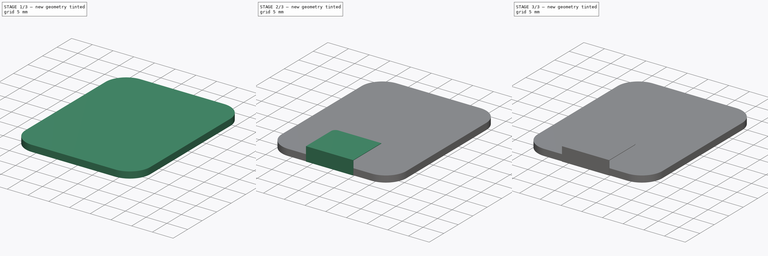
[diagram: build sequence overview — one tinted view per stage of 3, left to right]
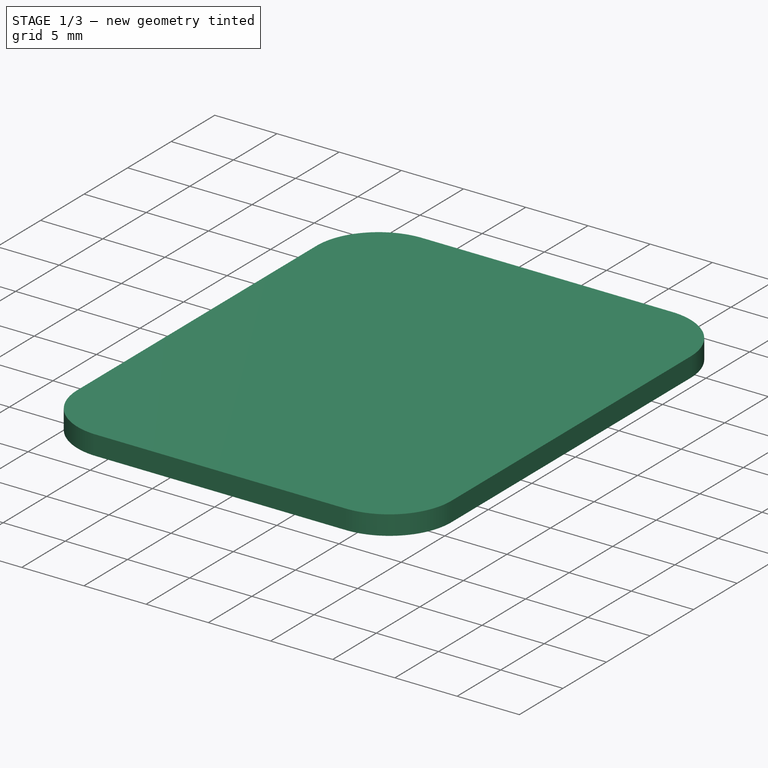
[diagram: stage 1 of 3 — iso view after this stage's code; geometry added in this stage tinted green]
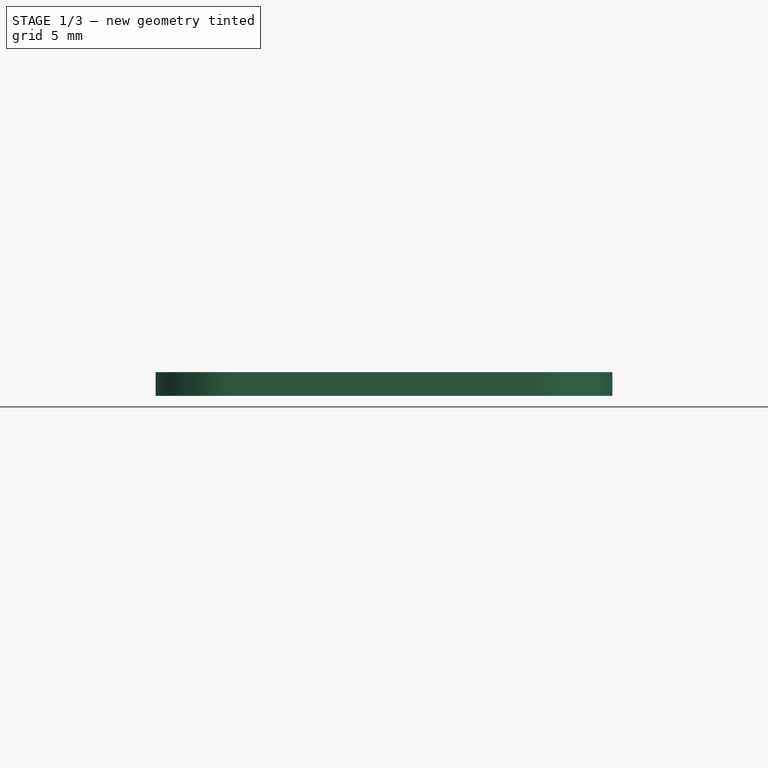
[diagram: stage 1 of 3 — front view after this stage's code; geometry added in this stage tinted green]
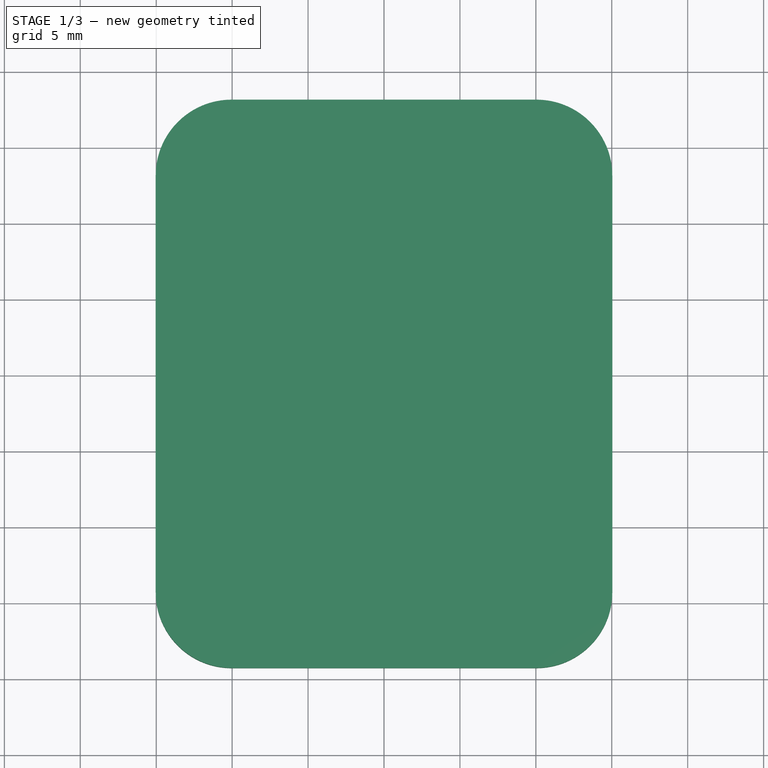
[diagram: stage 1 of 3 — top view after this stage's code; geometry added in this stage tinted green]
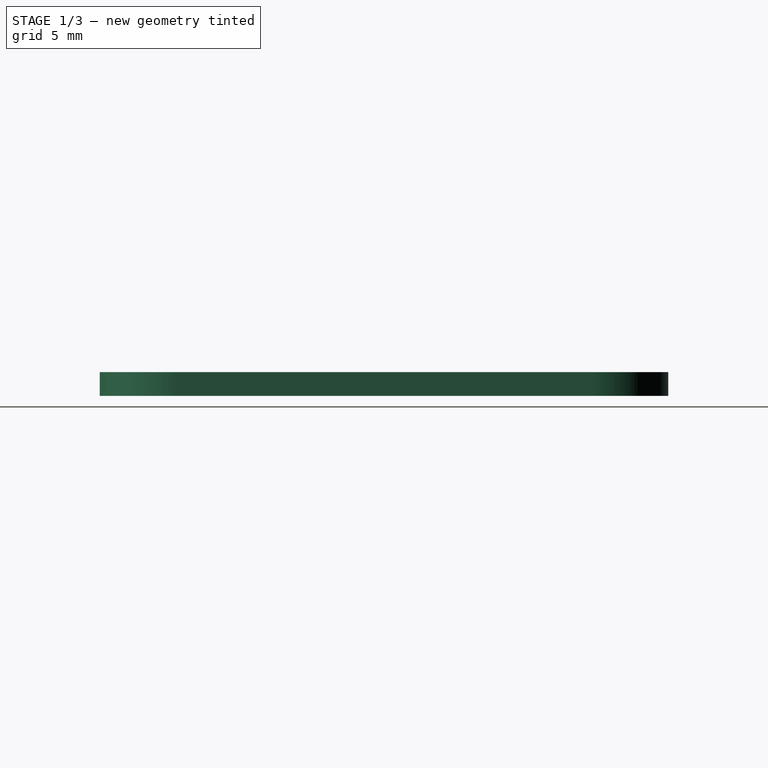
[diagram: stage 1 of 3 — right view after this stage's code; geometry added in this stage tinted green]
FCSTD DOCUMENT  (FreeCAD 0.20R29177 +426 (Git))
Label: 1.69Inch-3D-Model
License: All rights reserved
LicenseURL: http://en.wikipedia.org/wiki/All_rights_reserved
objects: Sketcher::SketchObject×5, PartDesign::Pad×4, PartDesign::Fillet×2, PartDesign::Pocket×1, PartDesign::Body×1
note: 20 computed .brp shape members not serialized (recipe doc carries the construction recipe); baked Part::Feature solids carry a one-line shape summary decoded from their .brp

FEATURE [Sketcher::SketchObject] Sketch
  FullyConstrained = true
  MapMode = 5
  Support = -> [XY_Plane]
  sketch-geometry (8):
    g0: LineSegment StartX=-9.985 StartY=17.165 StartZ=0 EndX=9.985 EndY=17.165 EndZ=0
    g1: LineSegment StartX=13.985 StartY=13.165 StartZ=0 EndX=13.985 EndY=-13.165 EndZ=0
    g2: LineSegment StartX=9.985 StartY=-17.165 StartZ=0 EndX=-9.985 EndY=-17.165 EndZ=0
    g3: LineSegment StartX=-13.985 StartY=-13.165 StartZ=0 EndX=-13.985 EndY=13.165 EndZ=0
    g4: ArcOfCircle CenterX=9.985 CenterY=13.165 CenterZ=0 NormalX=0 NormalY=0 NormalZ=1 AngleXU=0 Radius=4 StartAngle=0 EndAngle=1.5708
    g5: ArcOfCircle CenterX=-9.985 CenterY=13.165 CenterZ=0 NormalX=0 NormalY=0 NormalZ=1 AngleXU=0 Radius=4 StartAngle=1.5708 EndAngle=3.14159
    g6: ArcOfCircle CenterX=9.985 CenterY=-13.165 CenterZ=0 NormalX=0 NormalY=0 NormalZ=1 AngleXU=0 Radius=4 StartAngle=4.71239 EndAngle=6.28319
    g7: ArcOfCircle CenterX=-9.985 CenterY=-13.165 CenterZ=0 NormalX=0 NormalY=0 NormalZ=1 AngleXU=0 Radius=4 StartAngle=3.14159 EndAngle=4.71239
  constraints (19):
    c: Horizontal(g0)
    c: Horizontal(g2)
    c: Vertical(g1)
    c: Vertical(g3)
    c: Tangent(g0,g4) = 1.5708
    c: Tangent(g1,g4) = 1.5708
    c: Tangent(g0,g5) = 1.5708
    c: Tangent(g3,g5) = 1.5708
    c: Tangent(g2,g6) = 1.5708
    c: Tangent(g1,g6) = 1.5708
    c: Tangent(g3,g7) = 1.5708
    c: Tangent(g2,g7) = 1.5708
    c: Radius(g4) = 4
    c: Radius(g5) = 4
    c: Radius(g6) = 4
    c: Radius(g7) = 4
    c: Symmetric(g3,g1,g-1)
    c: Distance(g0,g2) = 34.33
    c: Distance(g3,g1) = 27.97
FEATURE [PartDesign::Pad] Pad
  Direction = (0,0,1)
  Length = 1.56
  Length2 = 10
  Profile = -> Sketch
  ReferenceAxis = -> Sketch [N_Axis]
  Type = 0
FEATURE [Sketcher::SketchObject] Sketch001
  ExternalGeometry = -> [Pad]
  FullyConstrained = true
  MapMode = 5
  Placement = pos=(0,0,1.56) rot=(0,0,1;0rad)
  Support = -> [Pad]
  sketch-geometry (8):
    g0: LineSegment StartX=-10.035 StartY=18.165 StartZ=0 EndX=10.035 EndY=18.165 EndZ=0
    g1: LineSegment StartX=15.035 StartY=13.165 StartZ=0 EndX=15.035 EndY=-14.2644 EndZ=0
    g2: LineSegment StartX=10.035 StartY=-19.2644 StartZ=0 EndX=-10.035 EndY=-19.2644 EndZ=0
    g3: LineSegment StartX=-15.035 StartY=-14.2644 StartZ=0 EndX=-15.035 EndY=13.165 EndZ=0
    g4: ArcOfCircle CenterX=10.035 CenterY=13.165 CenterZ=0 NormalX=0 NormalY=0 NormalZ=1 AngleXU=0 Radius=5 StartAngle=0 EndAngle=1.5708
    g5: ArcOfCircle CenterX=-10.035 CenterY=13.165 CenterZ=0 NormalX=0 NormalY=0 NormalZ=1 AngleXU=0 Radius=5 StartAngle=1.5708 EndAngle=3.14159
    g6: ArcOfCircle CenterX=-10.035 CenterY=-14.2644 CenterZ=0 NormalX=0 NormalY=0 NormalZ=1 AngleXU=0 Radius=5 StartAngle=3.14159 EndAngle=4.71239
    g7: ArcOfCircle CenterX=10.035 CenterY=-14.2644 CenterZ=0 NormalX=0 NormalY=0 NormalZ=1 AngleXU=0 Radius=5 StartAngle=4.71239 EndAngle=6.28319
  constraints (20):
    c: Horizontal(g0)
    c: Horizontal(g2)
    c: Vertical(g1)
    c: Vertical(g3)
    c: Tangent(g1,g4) = 1.5708
    c: Tangent(g0,g4) = 1.5708
    c: Tangent(g3,g5) = 1.5708
    c: Tangent(g0,g5) = 1.5708
    c: Tangent(g3,g6) = 1.5708
    c: Tangent(g2,g6) = 1.5708
    c: Tangent(g2,g7) = 1.5708
    c: Tangent(g1,g7) = 1.5708
    c: Radius(g7) = 5
    c: Radius(g4) = 5
    c: Radius(g5) = 5
    c: Radius(g6) = 5
    c: Distance(g0,g-6) = 1
    c: Distance(g3,g-4) = 1.05
    c: Distance(g-3,g1) = 1.05
    c: Distance(g-5,g2) = 2.1
FEATURE [PartDesign::Pad] Pad001
  BaseFeature = -> Pad
  Direction = (0,0,1)
  Length = 1.56
  Length2 = 10
  Profile = -> Sketch001
  ReferenceAxis = -> Sketch001 [N_Axis]
  Reversed = true
  Type = 0
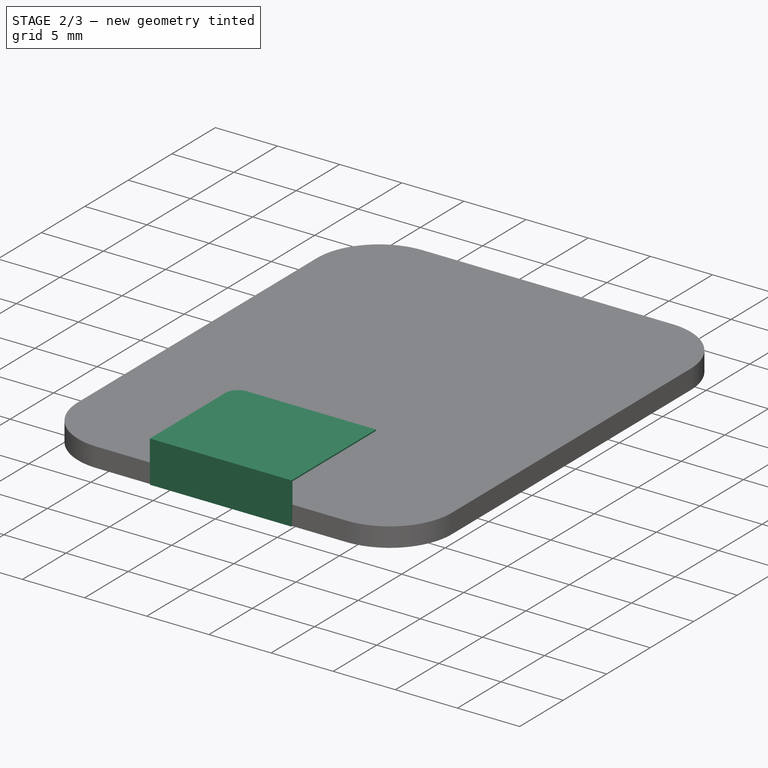
[diagram: stage 2 of 3 — iso view after this stage's code; geometry added in this stage tinted green]
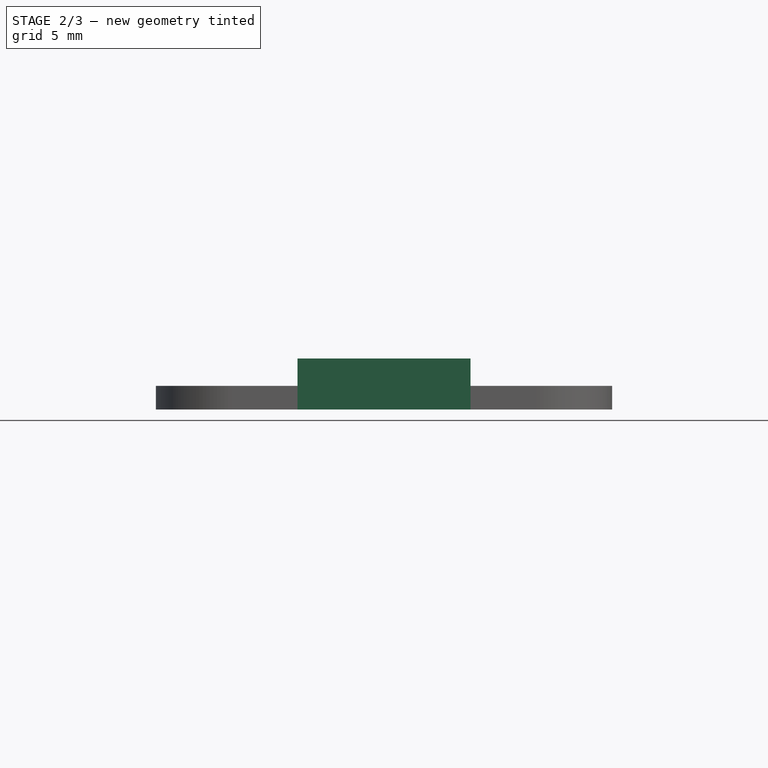
[diagram: stage 2 of 3 — front view after this stage's code; geometry added in this stage tinted green]
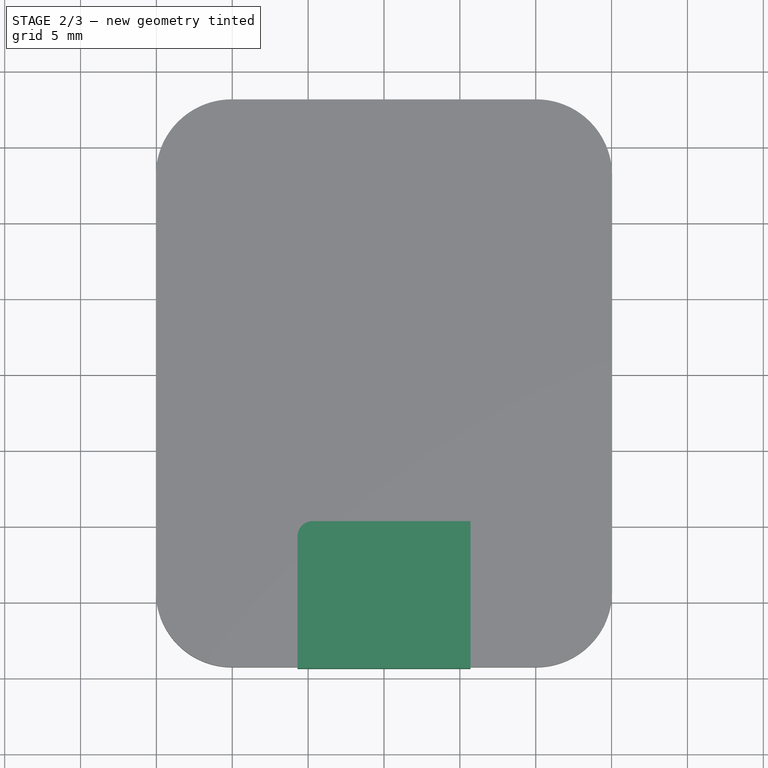
[diagram: stage 2 of 3 — top view after this stage's code; geometry added in this stage tinted green]
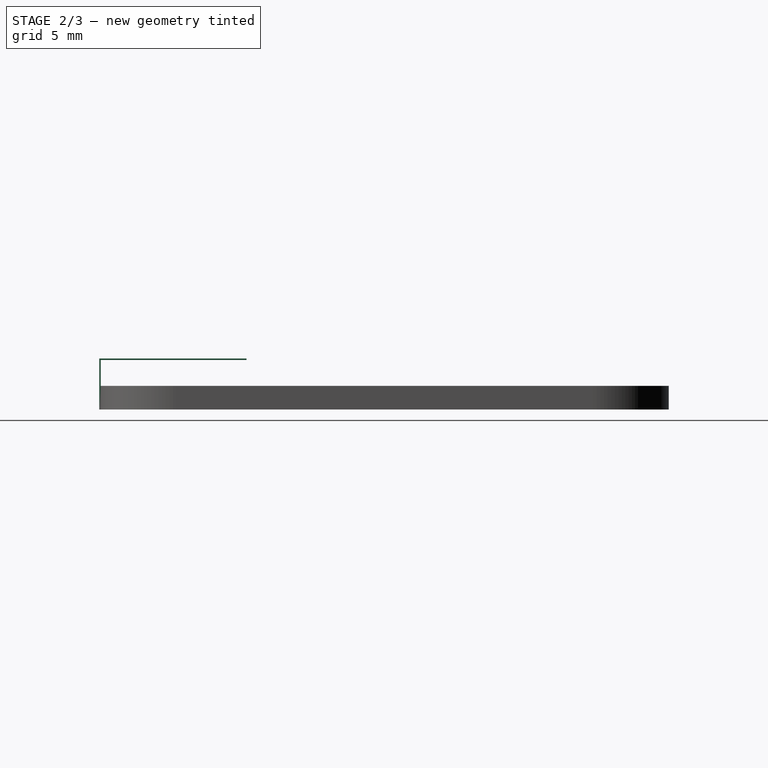
[diagram: stage 2 of 3 — right view after this stage's code; geometry added in this stage tinted green]
FEATURE [Sketcher::SketchObject] Sketch002
  ExternalGeometry = -> [Pad001]
  FullyConstrained = true
  MapMode = 5
  Placement = pos=(0,-19.2644,0) rot=(1,0,0;1.5708rad)
  Support = -> [Pad001]
  sketch-geometry (4):
    g0: LineSegment StartX=-5.7 StartY=3.36 StartZ=0 EndX=5.7 EndY=3.36 EndZ=0
    g1: LineSegment StartX=5.7 StartY=3.36 StartZ=0 EndX=5.7 EndY=0 EndZ=0
    g2: LineSegment StartX=5.7 StartY=0 StartZ=0 EndX=-5.7 EndY=-1e-16 EndZ=0
    g3: LineSegment StartX=-5.7 StartY=-1e-16 StartZ=0 EndX=-5.7 EndY=3.36 EndZ=0
  constraints (11):
    c: Coincident(g0,g1)
    c: Coincident(g1,g2)
    c: Coincident(g2,g3)
    c: Coincident(g3,g0)
    c: Horizontal(g0)
    c: Vertical(g1)
    c: Vertical(g3)
    c: Symmetric(g1,g2,g-2)
    c: PointOnObject(g1,g-4)
    c: Distance(g0,g2) = 3.36
    c: DistanceX(g0,g0) = 11.4
FEATURE [PartDesign::Pad] Pad002
  BaseFeature = -> Pad001
  Direction = (0,-1,2e-16)
  Length = 0.1
  Length2 = 10
  Profile = -> Sketch002
  ReferenceAxis = -> Sketch002 [N_Axis]
  Type = 0
FEATURE [Sketcher::SketchObject] Sketch003
  ExternalGeometry = -> [Pad002]
  FullyConstrained = true
  MapMode = 5
  Placement = pos=(0,-19.2644,0) rot=(0,0.707107,0.707107;3.14159rad)
  Support = -> [Pad002]
  sketch-geometry (4):
    g0: LineSegment StartX=-5.7 StartY=3.36 StartZ=0 EndX=5.7 EndY=3.36 EndZ=0
    g1: LineSegment StartX=5.7 StartY=3.36 StartZ=0 EndX=5.7 EndY=3.26 EndZ=0
    g2: LineSegment StartX=5.7 StartY=3.26 StartZ=0 EndX=-5.7 EndY=3.26 EndZ=0
    g3: LineSegment StartX=-5.7 StartY=3.26 StartZ=0 EndX=-5.7 EndY=3.36 EndZ=0
  constraints (12):
    c: Coincident(g0,g1)
    c: Coincident(g1,g2)
    c: Coincident(g2,g3)
    c: Coincident(g3,g0)
    c: Horizontal(g0)
    c: Horizontal(g2)
    c: Vertical(g1)
    c: Vertical(g3)
    c: PointOnObject(g0,g-3)
    c: DistanceY(g3,g3) = 0.1
    c: PointOnObject(g2,g-4)
    c: PointOnObject(g1,g-5)
FEATURE [PartDesign::Pad] Pad003
  BaseFeature = -> Pad002
  Direction = (0,1,-2e-16)
  Length = 9.6
  Length2 = 10
  Profile = -> Sketch003
  ReferenceAxis = -> Sketch003 [N_Axis]
  Type = 0
FEATURE [PartDesign::Fillet] Fillet
  Base = -> Pad003 [Edge67]
  BaseFeature = -> Pad003
  Radius = 1
  SupportTransform = false
  UseAllEdges = false
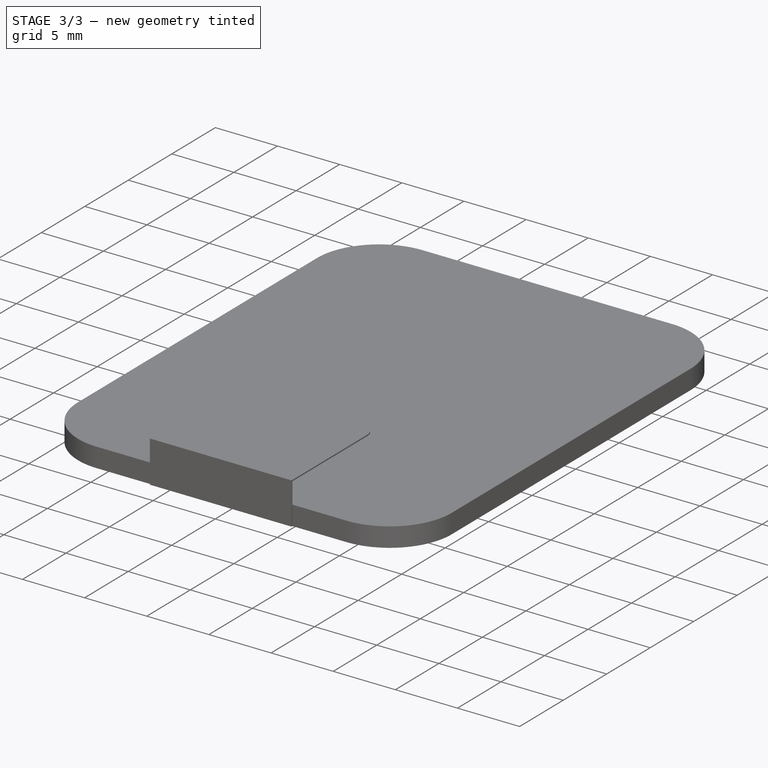
[diagram: stage 3 of 3 — iso view after this stage's code; geometry added in this stage tinted green]
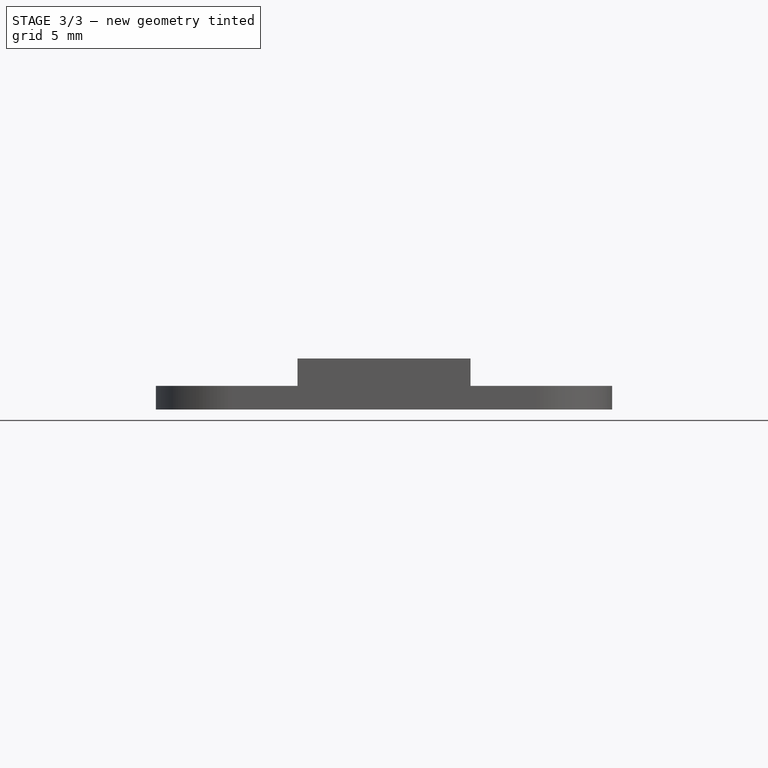
[diagram: stage 3 of 3 — front view after this stage's code; geometry added in this stage tinted green]
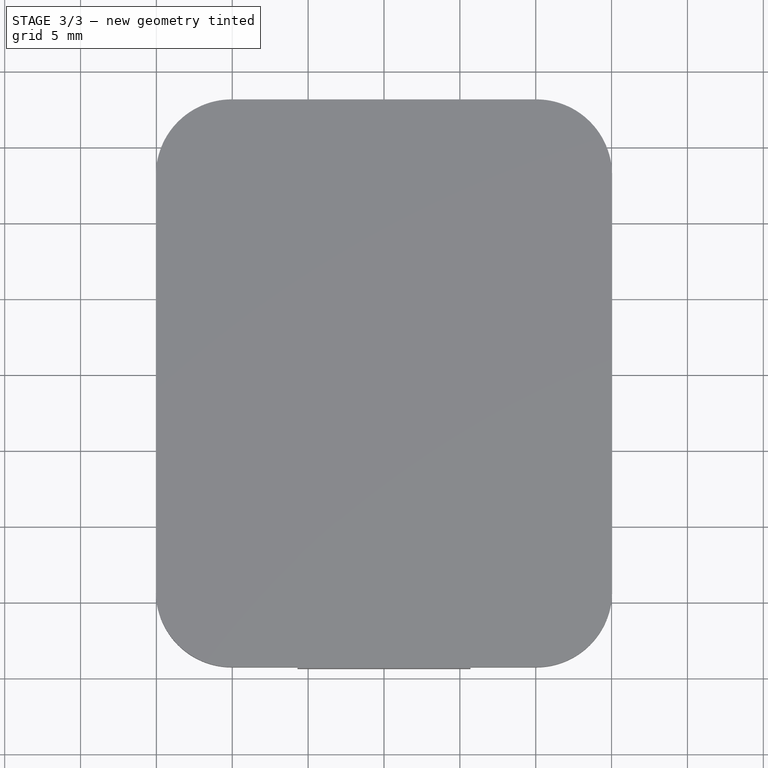
[diagram: stage 3 of 3 — top view after this stage's code; geometry added in this stage tinted green]
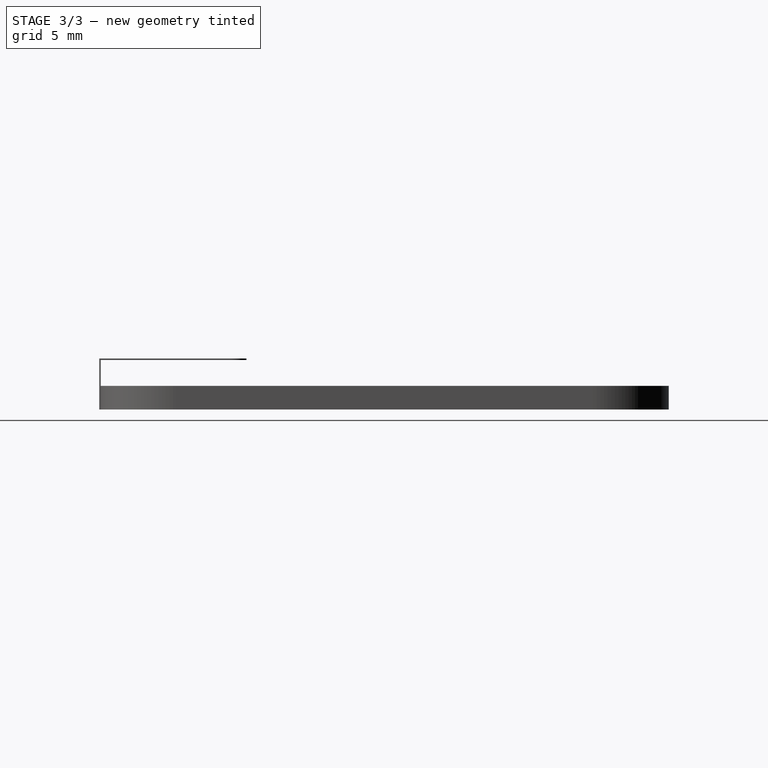
[diagram: stage 3 of 3 — right view after this stage's code; geometry added in this stage tinted green]
FEATURE [PartDesign::Fillet] Fillet001
  Base = -> Fillet [Edge15]
  BaseFeature = -> Fillet
  Radius = 1
  SupportTransform = false
  UseAllEdges = false
FEATURE [Sketcher::SketchObject] Sketch004
  ExternalGeometry = -> [Fillet001]
  FullyConstrained = true
  MapMode = 5
  Placement = pos=(0,0,-2e-16) rot=(1,0,0;3.14159rad)
  Support = -> [Fillet001]
  sketch-geometry (4):
    g0: ArcOfCircle CenterX=-7.5 CenterY=18.2144 CenterZ=0 NormalX=0 NormalY=0 NormalZ=1 AngleXU=0 Radius=0.25 StartAngle=1.5708 EndAngle=4.71239
    g1: ArcOfCircle CenterX=7.5 CenterY=18.2144 CenterZ=0 NormalX=0 NormalY=0 NormalZ=1 AngleXU=0 Radius=0.25 StartAngle=4.71239 EndAngle=7.85398
    g2: LineSegment StartX=-7.5 StartY=17.9644 StartZ=0 EndX=7.5 EndY=17.9644 EndZ=0
    g3: LineSegment StartX=7.5 StartY=18.4644 StartZ=0 EndX=-7.5 EndY=18.4644 EndZ=0
  constraints (9):
    c: Tangent(g0,g2) = -1.5708
    c: Tangent(g2,g1) = -1.5708
    c: Tangent(g1,g3) = -1.5708
    c: Tangent(g3,g0) = -1.5708
    c: Equal(g0,g1)
    c: Distance(g0,g1) = 15
    c: Distance(g0,g0) = 0.5
    c: Symmetric(g0,g1,g-2)
    c: Distance(g1,g-3) = 0.8
FEATURE [PartDesign::Pocket] Pocket
  BaseFeature = -> Fillet001
  Direction = (0,0,1)
  Length = 0.2
  Length2 = 5
  Profile = -> Sketch004
  ReferenceAxis = -> Sketch004 [N_Axis]
  Type = 0
FEATURE [PartDesign::Body] Body
  Group = -> [Sketch,Pad,Sketch001,Pad001,Sketch002,Pad002,Sketch003,Pad003,Fillet,Fillet001,Sketch004,Pocket]
  Origin = -> Origin
  Tip = -> Pocket
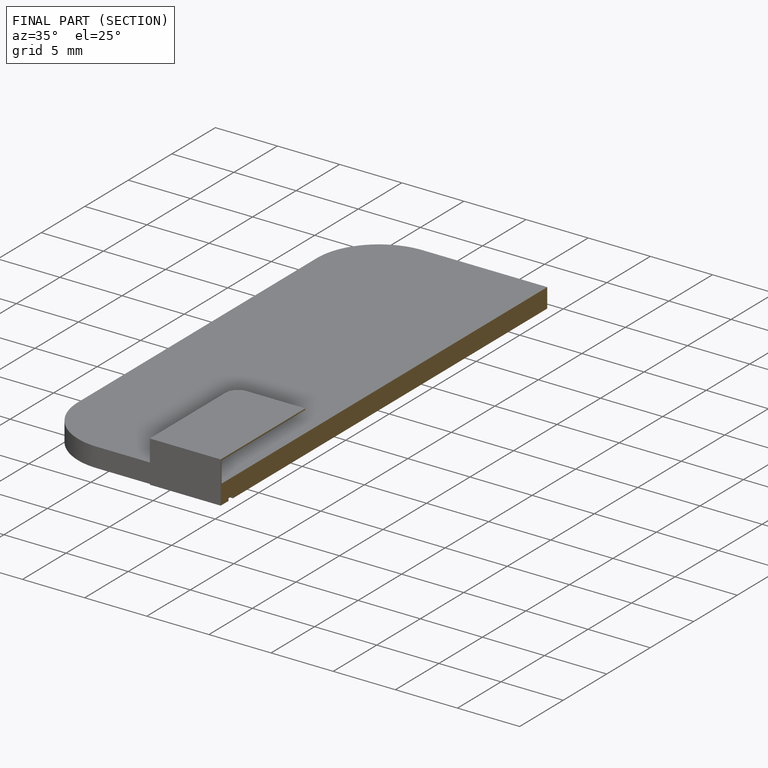
[diagram: finished part — half-section view (interior)]
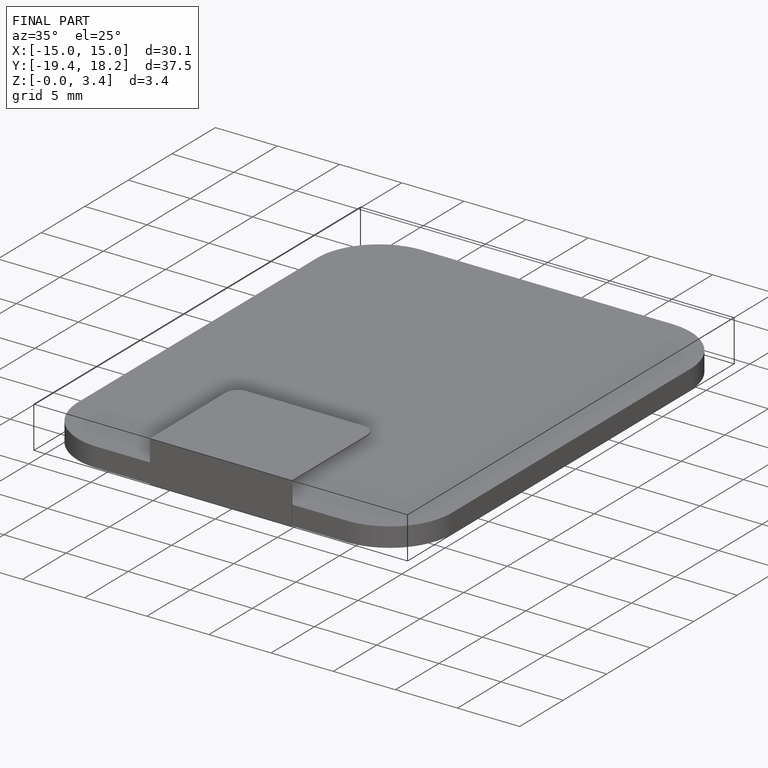
[diagram: finished part — iso view with bounding-box wireframe]
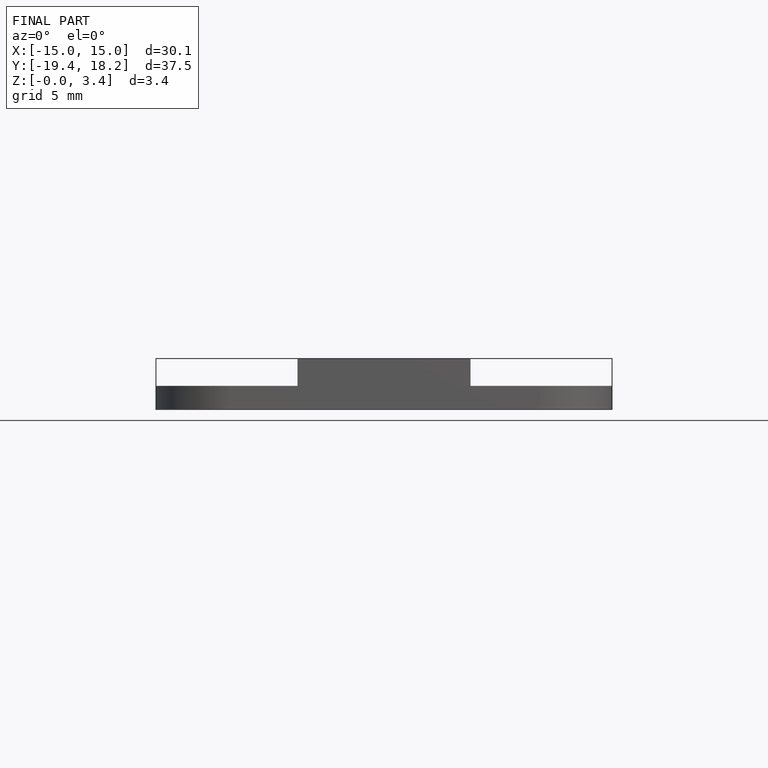
[diagram: finished part — front view with bounding-box wireframe]
